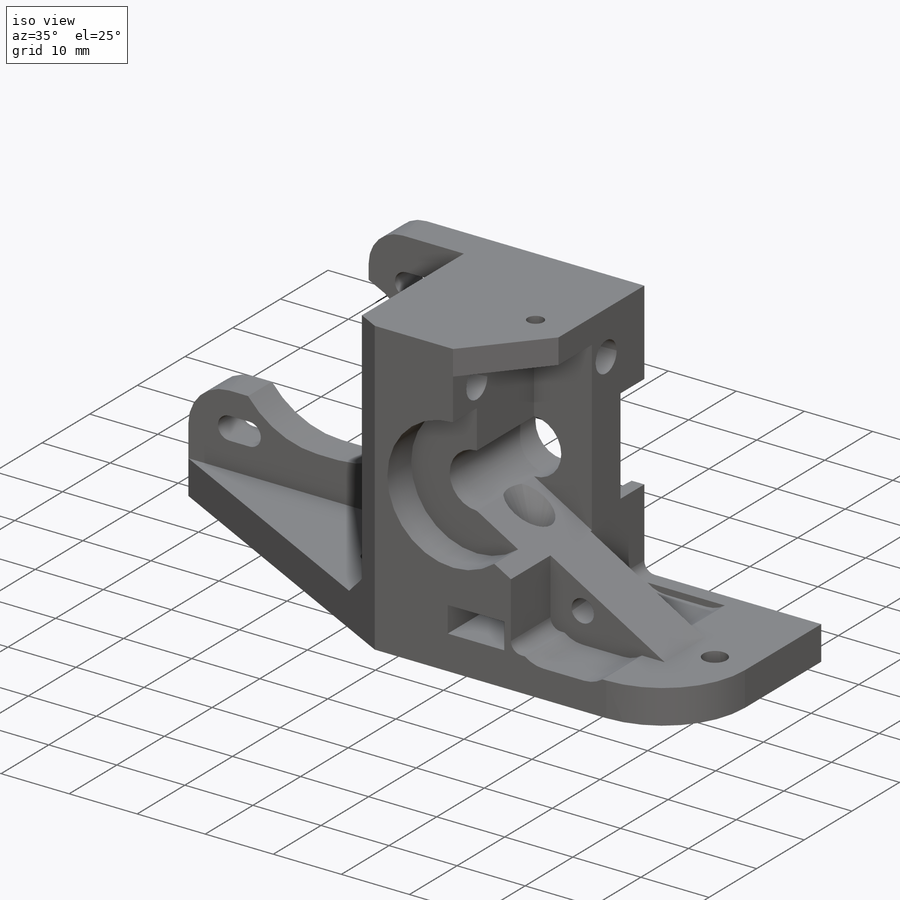
[diagram: iso view]
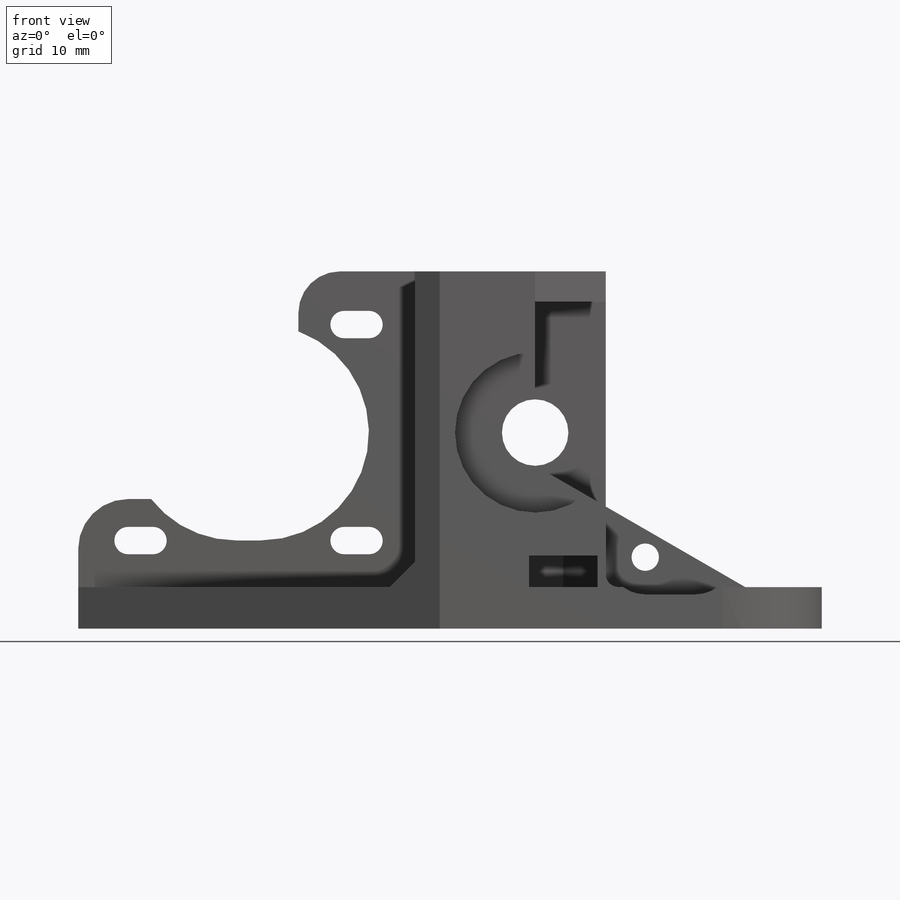
[diagram: front view]
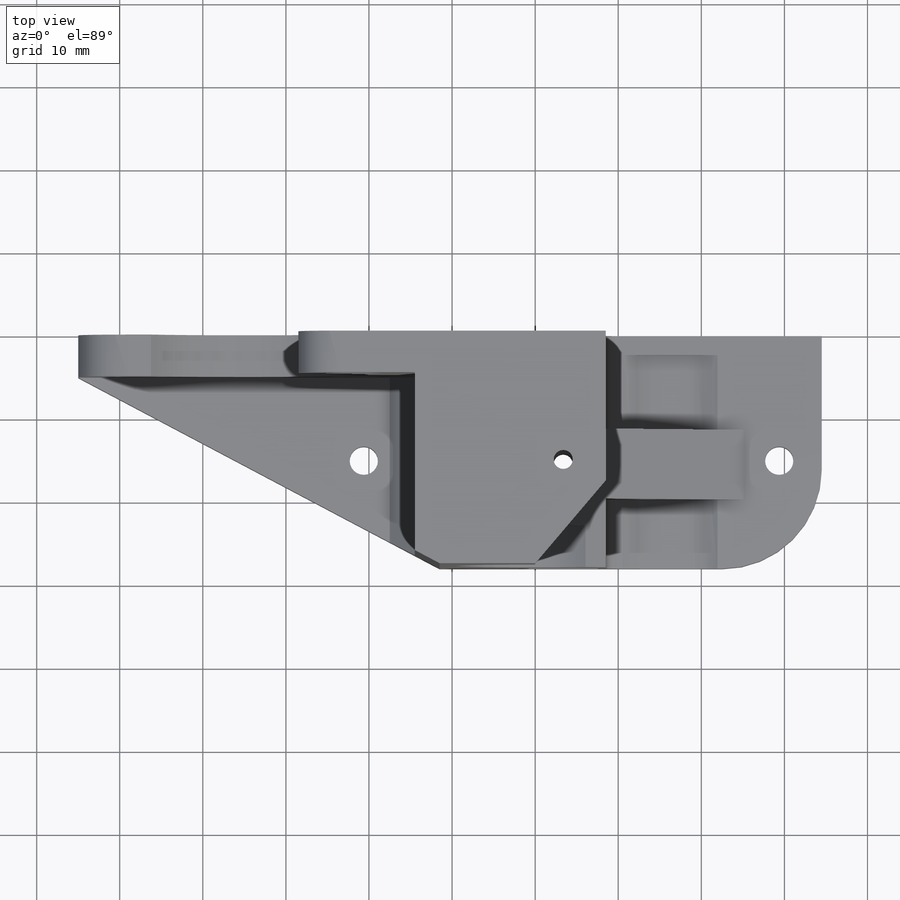
[diagram: top view]
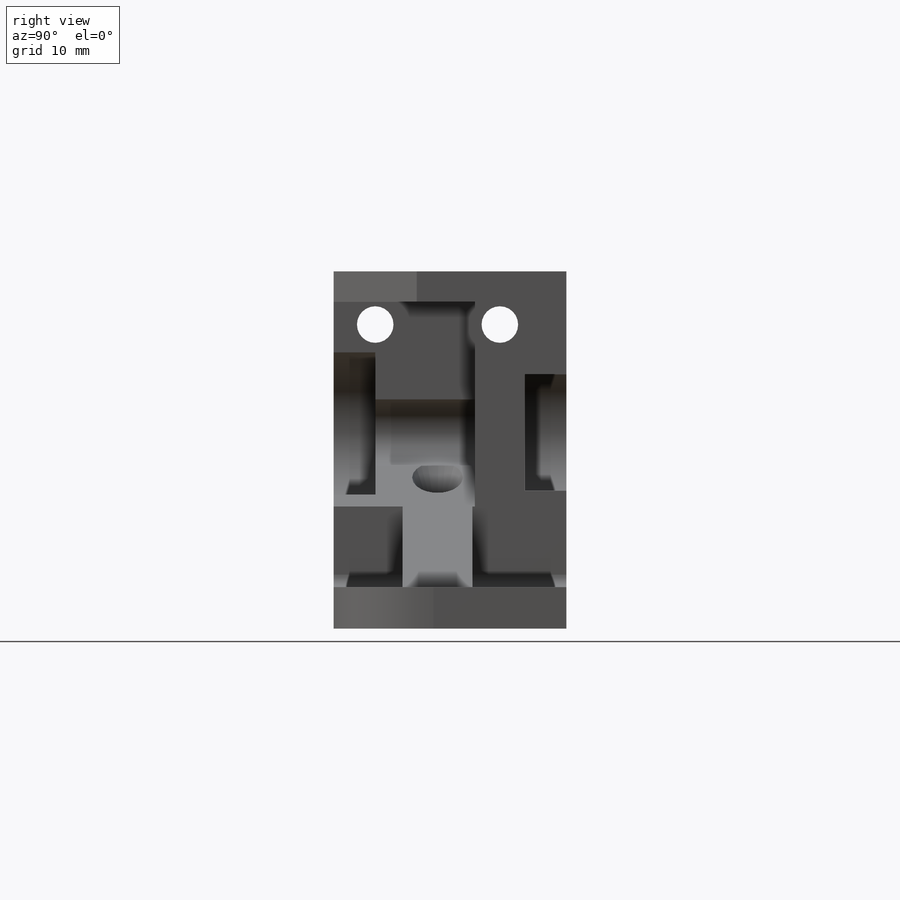
[diagram: right view]
SOLIDWORKS PART (.sldprt)
format: sldprt  version: not decoded by parser v0  size: 605,184 bytes
history: native  units: mm
features: sketch x17, cut_extrude x14, fillet x4, plane x3, chamfer x3, extrude x2, material x1, cut_revolve x1, mirror x1 (+16 scaffold rows collapsed)
feature tree (62):
  scaffold x16  (default folders/planes/origin — collapsed)
  material  "Material <not specified>"
  sketch  "Sketch1"  dims[c1.D1=8.0mm c1.D6=22.4mm c1.D8=31.0mm c2.D6=22.4mm c2.D2=26.0mm c2.D7=22.4mm c3.D2=85.0mm c3.D3=43.0mm c3.D4=55.0mm c3.D5=~82.444554mm c4.D5=90.0deg c5.D5=23.6mm c5.D7=34.5mm c5.D9=3.3mm c5.D10=9.0mm c5.D2=6.0mm c5.D11=8.0mm c5.D12=1.5mm c5.D13=3.0mm c6.D7=~21.360009mm c6.D6=34.5mm c6.D8=3.3mm c6.D9=3.0mm c6.D10=3.0mm c6.D11=1.5mm c7.D7=6.0mm c7.D12=8.0mm c7.D13=34.5mm]
  extrude  "Boss-Extrude1"  Depth=28mm
  sketch  "Sketch2"  dims[D1=20.0mm D2=18.6mm D3=34.5mm]
  cut_extrude  "Cut-Extrude1"  Depth=5mm
  sketch  "Sketch3"  dims[D1=19.3mm]
  cut_extrude  "Cut-Extrude2"  Depth=5mm
  plane  "Plane1"  Offset=11mm
  plane  "Plane2"  Offset=5mm
  plane  "Plane3"  Offset=15.5mm
  sketch  "Sketch8"  dims[D1=2.3mm D2=3.375mm D3=15.5mm]
  cut_extrude  "Cut-Extrude7"  [1 undecoded]
  chamfer  "Chamfer1"  Distance=23mm
  sketch  "Sketch9"  dims[c1.D1=4.4mm c1.D2=6.5mm c1.D3=13.0mm c2.D2=7.5mm c2.D4=7.5mm]
  cut_extrude  "Cut-Extrude8"  [1 undecoded]
  sketch  "Sketch10"  dims[D1=5.8mm]
  cut_extrude  "Cut-Extrude9"  Depth=4mm
  chamfer  "Chamfer2"  Distance=3mm Angle=45deg
  sketch  "Sketch16"  dims[D1=8.5mm]
  cut_extrude  "Cut-Extrude12"  [1 undecoded]
  sketch  "Sketch4"  dims[D1=19.3mm D2=14.0mm]
  cut_extrude  "Cut-Extrude3"  Depth=5mm
  fillet  "Fillet6"  Radius=1.5mm
  sketch  "Sketch17"  dims[c1.D1=~19.706417mm c2.D1=45.0deg c3.D1=~12.020815mm c4.D1=120.0deg]
  cut_extrude  "Cut-Extrude13"  Depth=17mm
  sketch  "Sketch20"  dims[D1=8.0mm D2=4.0mm D3=3.8mm]
  cut_revolve  "Cut-Revolve1"  Angle=360deg
  sketch  "Sketch21"  dims[c1.D2=3.3mm c1.D5=3.5mm c1.D1=13.25mm c1.D3=15.0mm c1.D4=6.0mm c1.D6=~7.298801mm c2.D6=~52.025929deg c3.D6=~7.545886mm c4.D6=45.0deg]
  extrude  "Boss-Extrude3"  Depth=4.2mm
  sketch  "Sketch15"  dims[D2=3.4mm D1=50.0mm]
  cut_extrude  "Cut-Extrude11"  [1 undecoded]
  sketch  "Sketch22"  dims[D1=9.0mm D2=6.0mm]
  cut_extrude  "Cut-Extrude14"  Depth=9mm
  mirror  "Mirror1"
  chamfer  "Chamfer4"  Distance=8.5mm
  fillet  "Fillet1"  Radius=5mm
  fillet  "Fillet2"  Radius=6mm
  fillet  "Fillet4"  Radius=12mm
  sketch  "Sketch23"  dims[D1=8.5mm]
  cut_extrude  "Cut-Extrude15"  Depth=3.8mm
  sketch  "Sketch24"  dims[D1=25.0mm D2=2.7mm]
  cut_extrude  "Cut-Extrude16"  Depth=10mm
  sketch  "Sketch25"  dims[D1=5.8mm]
  cut_extrude  "Cut-Extrude17"  Depth=6mm
  sketch  "Sketch26"  dims[D1=6.3mm]
  cut_extrude  "Cut-Extrude18"  [1 undecoded]
decode coverage: 36 of 42 modeling features carry decoded parameters
note: ~ marks probable driven/reference dimensions
note: 5 parameter values undecoded
summary: no parameter record found for 5 features
note: suppression state not decoded; provenance and decode notes live in map.json
